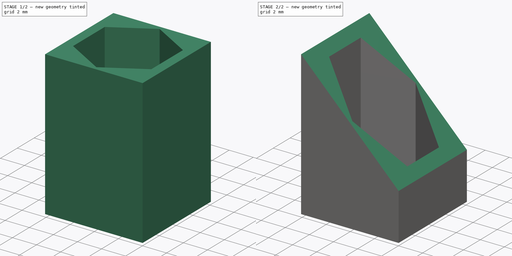
[diagram: build sequence overview — one tinted view per stage of 2, left to right]
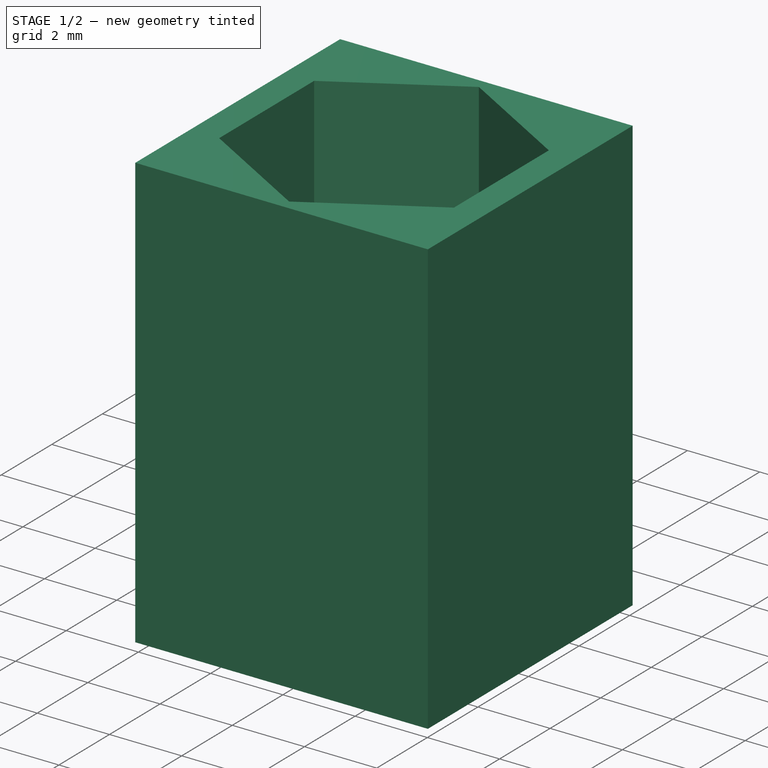
[diagram: stage 1 of 2 — iso view after this stage's code; geometry added in this stage tinted green]
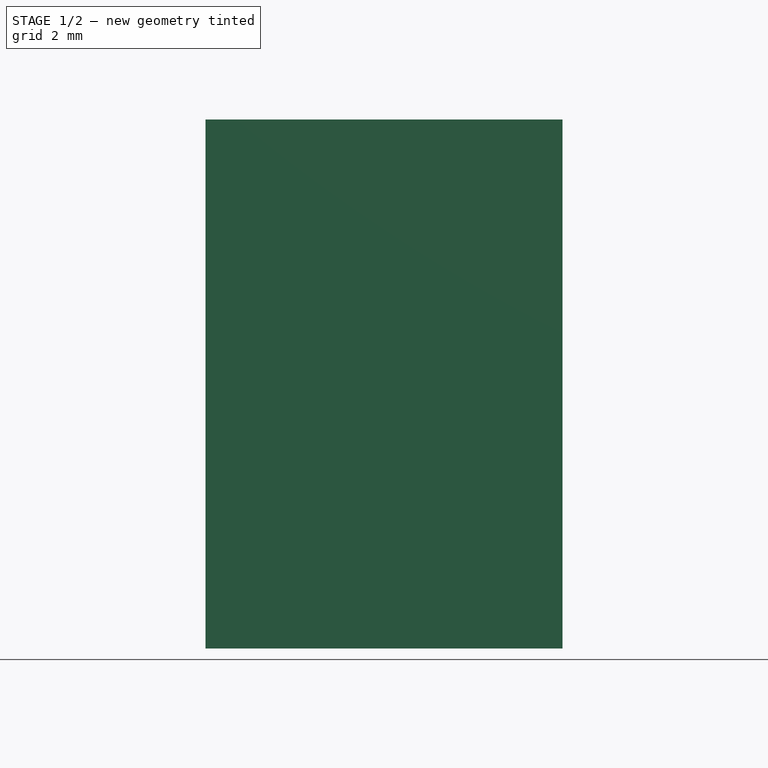
[diagram: stage 1 of 2 — front view after this stage's code; geometry added in this stage tinted green]
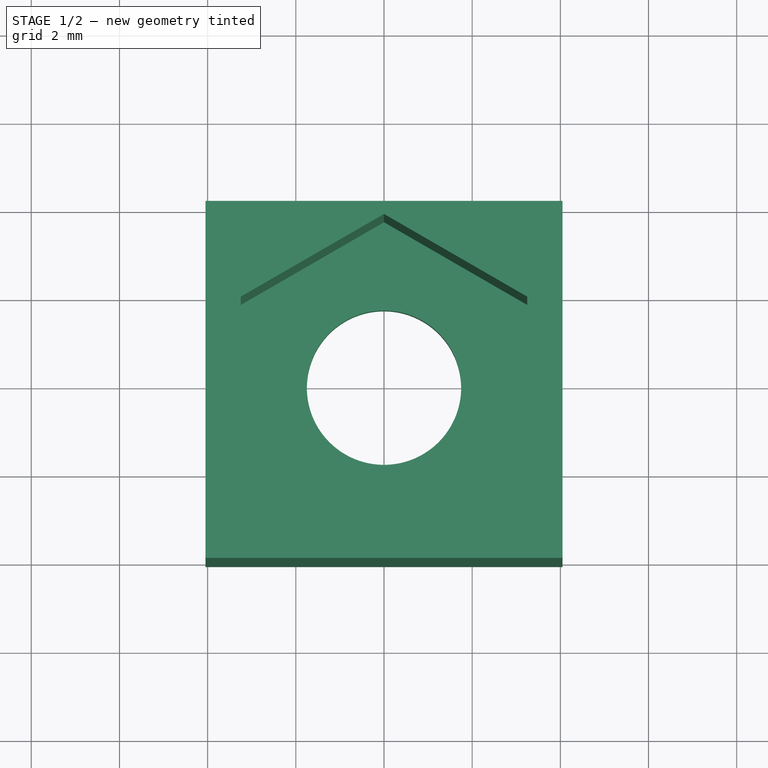
[diagram: stage 1 of 2 — top view after this stage's code; geometry added in this stage tinted green]
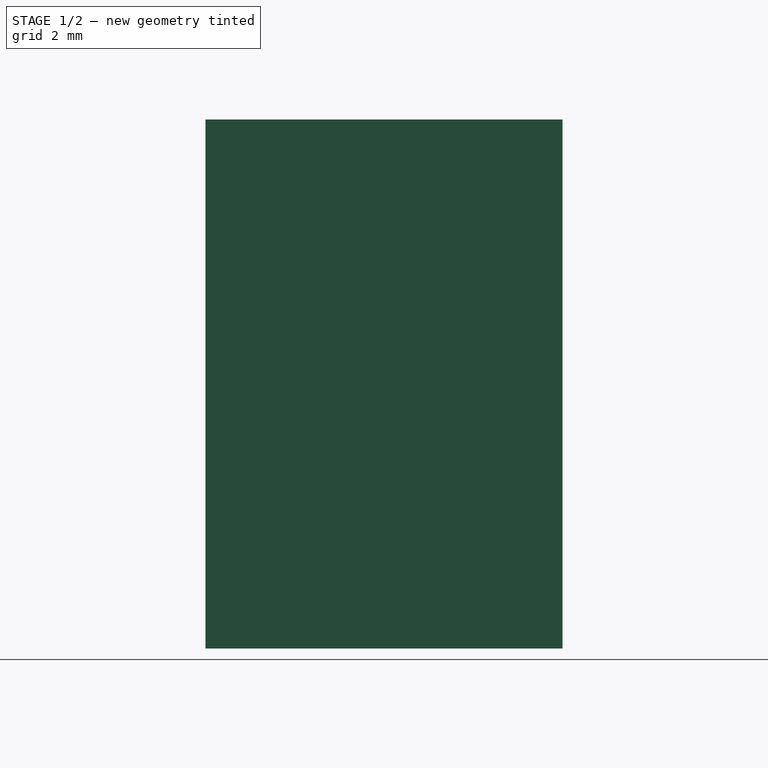
[diagram: stage 1 of 2 — right view after this stage's code; geometry added in this stage tinted green]
FCSTD DOCUMENT  (FreeCAD 0.20R29177 (Git))
Label: Nut Anchor
License: All rights reserved
LicenseURL: https://en.wikipedia.org/wiki/All_rights_reserved
objects: PartDesign::CoordinateSystem×5, Sketcher::SketchObject×3, PartDesign::Pocket×2, App::FeaturePython×1, PartDesign::Pad×1, PartDesign::Body×1
note: 15 computed .brp shape members not serialized (recipe doc carries the construction recipe); baked Part::Feature solids carry a one-line shape summary decoded from their .brp

FEATURE [Sketcher::SketchObject] Sketch
  FullyConstrained = true
  MapMode = 5
  Support = -> [XY_Plane]
  expr: Constraints[10] = Variables.hole_diameter
  expr: Constraints[12] = Variables.width
  sketch-geometry (5):
    g0: LineSegment StartX=-4.05 StartY=4.05 StartZ=0 EndX=4.05 EndY=4.05 EndZ=0
    g1: LineSegment StartX=4.05 StartY=4.05 StartZ=0 EndX=4.05 EndY=-4.05 EndZ=0
    g2: LineSegment StartX=4.05 StartY=-4.05 StartZ=0 EndX=-4.05 EndY=-4.05 EndZ=0
    g3: LineSegment StartX=-4.05 StartY=-4.05 StartZ=0 EndX=-4.05 EndY=4.05 EndZ=0
    g4: Circle CenterX=0 CenterY=0 CenterZ=0 NormalX=0 NormalY=0 NormalZ=1 AngleXU=0 Radius=1.75
  constraints (13):
    c: Coincident(g0,g1)
    c: Coincident(g1,g2)
    c: Coincident(g2,g3)
    c: Coincident(g3,g0)
    c: Horizontal(g0)
    c: Horizontal(g2)
    c: Vertical(g1)
    c: Vertical(g3)
    c: Symmetric(g1,g0,g-1)
    c: Coincident(g4,g-1)
    c: Diameter(g4) = 3.5
    c: Equal(g0,g1)
    c: DistanceX(g2,g2) = 8.1
FEATURE [App::FeaturePython] Variables  # WARN: FeaturePython — macro-defined, semantics opaque (R4)
  Type = App::PropertyContainer
  bold_width = 5.5
  height = 12
  hole_diameter = 3.5
  width = 8.1
  expr: width = bold_width + 0.5 * 2 + 0.8 * 2
FEATURE [PartDesign::Pad] Pad  label="Cylinder"
  Direction = (0,0,1)
  Length = 12
  Length2 = 10
  Profile = -> Sketch
  ReferenceAxis = -> Sketch [N_Axis]
  Refine = true
  Type = 0
  expr: Length = Variables.height
FEATURE [Sketcher::SketchObject] Sketch001
  AttachmentOffset = pos=(0,0,1.2) rot=(0,0,1;0rad)
  FullyConstrained = true
  MapMode = 5
  Placement = pos=(0,0,1.2) rot=(0,0,1;0rad)
  Support = -> [XY_Plane]
  expr: Constraints[19] = Variables.bold_width + 1
  sketch-geometry (7):
    g0: LineSegment StartX=0 StartY=3.75278 StartZ=0 EndX=-3.25 EndY=1.87639 EndZ=0
    g1: LineSegment StartX=-3.25 StartY=1.87639 StartZ=0 EndX=-3.25 EndY=-1.87639 EndZ=0
    g2: LineSegment StartX=-3.25 StartY=-1.87639 StartZ=0 EndX=4e-16 EndY=-3.75278 EndZ=0
    g3: LineSegment StartX=4e-16 StartY=-3.75278 StartZ=0 EndX=3.25 EndY=-1.87639 EndZ=0
    g4: LineSegment StartX=3.25 StartY=-1.87639 StartZ=0 EndX=3.25 EndY=1.87639 EndZ=0
    g5: LineSegment StartX=3.25 StartY=1.87639 StartZ=0 EndX=0 EndY=3.75278 EndZ=0
    g6: Circle CenterX=0 CenterY=0 CenterZ=0 NormalX=0 NormalY=0 NormalZ=1 AngleXU=0 Radius=3.75278
  constraints (16):
    c: Coincident(g0,g1)
    c: Coincident(g1,g2)
    c: Coincident(g2,g3)
    c: Coincident(g3,g4)
    c: Coincident(g4,g5)
    c: Coincident(g5,g0)
    c: Equal(g0, g1-g5) x5
    c: PointOnObject(g0,g6)
    c: PointOnObject(g1,g6)
    c: PointOnObject(g2,g6)
    c: PointOnObject(g3,g6)
    c: PointOnObject(g4,g6)
    c: PointOnObject(g5,g6)
    c: Coincident(g6,g-1)
    c: PointOnObject(g5,g-2)
    c: DistanceX(g1,g3) = 6.5
FEATURE [PartDesign::Pocket] Pocket  label="Nut Fit"
  BaseFeature = -> Pad
  Direction = (0,0,-1)
  Length = 5
  Length2 = 5
  Profile = -> Sketch001
  ReferenceAxis = -> Sketch001 [N_Axis]
  Refine = true
  Reversed = true
  Type = 1
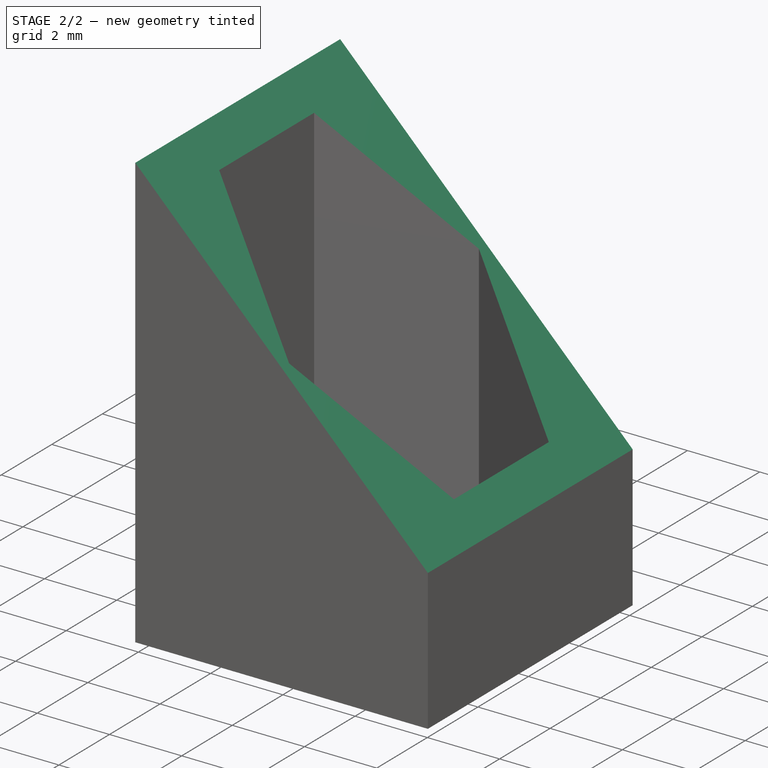
[diagram: stage 2 of 2 — iso view after this stage's code; geometry added in this stage tinted green]
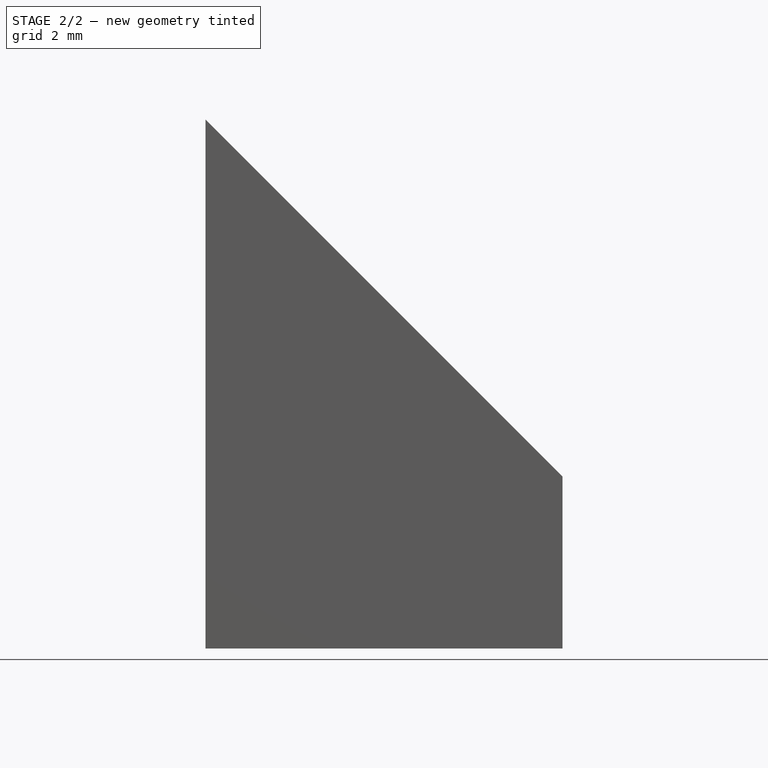
[diagram: stage 2 of 2 — front view after this stage's code; geometry added in this stage tinted green]
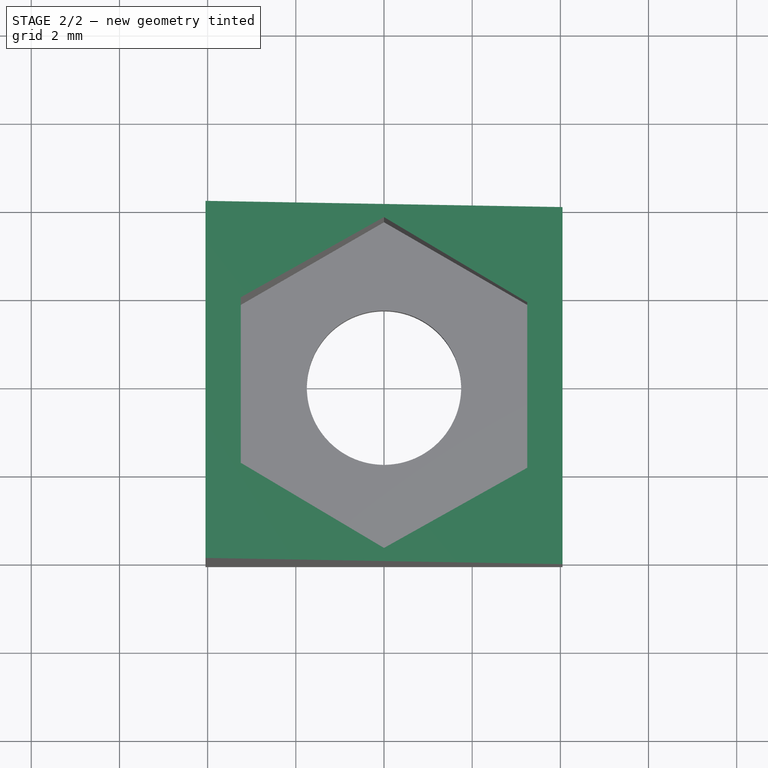
[diagram: stage 2 of 2 — top view after this stage's code; geometry added in this stage tinted green]
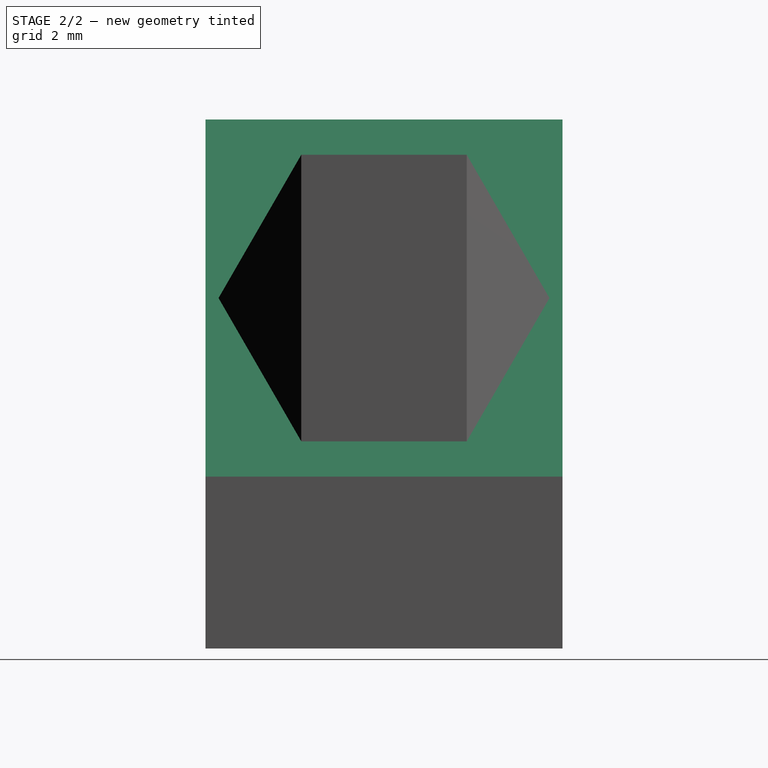
[diagram: stage 2 of 2 — right view after this stage's code; geometry added in this stage tinted green]
FEATURE [PartDesign::CoordinateSystem] LCS_0
  AttacherType = Attacher::AttachEngine3D
  MapMode = 2
  Support = -> [Pad]
FEATURE [PartDesign::CoordinateSystem] LCS_Top
  AttacherType = Attacher::AttachEngine3D
  AttachmentOffset = pos=(0,0,12) rot=(0,0,1;0rad)
  MapMode = 2
  Placement = pos=(0,0,12) rot=(0,0,1;0rad)
  Support = -> [Pad]
  expr: .AttachmentOffset.Base.z = Variables.height
FEATURE [PartDesign::CoordinateSystem] LCS_Bottom_Left
  AttacherType = Attacher::AttachEngine3D
  AttachmentOffset = pos=(-4.05,0,0) rot=(0,0,1;0rad)
  MapMode = 2
  Placement = pos=(-4.05,0,0) rot=(0,0,1;0rad)
  Support = -> [Pad]
  expr: .AttachmentOffset.Base.x = -Variables.width / 2
FEATURE [Sketcher::SketchObject] Sketch002
  ExternalGeometry = -> [Pocket]
  FullyConstrained = true
  MapMode = 5
  Placement = pos=(0,0,0) rot=(1,0,0;1.5708rad)
  Support = -> [XZ_Plane]
  sketch-geometry (3):
    g0: LineSegment StartX=4.05 StartY=12 StartZ=0 EndX=-4.05 EndY=12 EndZ=0
    g1: LineSegment StartX=4.05 StartY=12 StartZ=0 EndX=4.05 EndY=3.9 EndZ=0
    g2: LineSegment StartX=-4.05 StartY=12 StartZ=0 EndX=4.05 EndY=3.9 EndZ=0
  constraints (7):
    c: Coincident(g0,g-5)
    c: Coincident(g0,g-4)
    c: Coincident(g1,g0)
    c: Vertical(g1)
    c: Coincident(g2,g0)
    c: Coincident(g2,g1)
    c: Equal(g1,g0)
FEATURE [PartDesign::Pocket] Pocket001  label="Diag Cut"
  BaseFeature = -> Pocket
  Direction = (0,1,2e-16)
  Length = 5
  Length2 = 5
  Midplane = true
  Profile = -> Sketch002
  ReferenceAxis = -> Sketch002 [N_Axis]
  Refine = true
  Type = 1
FEATURE [PartDesign::CoordinateSystem] LCS_Bottom_Front_Left
  AttacherType = Attacher::AttachEngine3D
  AttachmentOffset = pos=(-4.05,-4.05,0) rot=(0,0,1;0rad)
  MapMode = 2
  Placement = pos=(-4.05,-4.05,0) rot=(0,0,1;0rad)
  Support = -> [Pad]
  expr: .AttachmentOffset.Base.x = -Variables.width / 2
  expr: .AttachmentOffset.Base.y = -Variables.width / 2
FEATURE [PartDesign::CoordinateSystem] LCS_Bottom_Rear_Left
  AttacherType = Attacher::AttachEngine3D
  AttachmentOffset = pos=(-4.05,4.05,0) rot=(0,0,1;0rad)
  MapMode = 2
  Placement = pos=(-4.05,4.05,0) rot=(0,0,1;0rad)
  Support = -> [Pad]
  expr: .AttachmentOffset.Base.x = -Variables.width / 2
  expr: .AttachmentOffset.Base.y = Variables.width / 2
FEATURE [PartDesign::Body] Body
  Group = -> [Sketch,Pad,Sketch001,Pocket,Pocket001,LCS_0,LCS_Top,LCS_Bottom_Left,Sketch002,LCS_Bottom_Front_Left,LCS_Bottom_Rear_Left]
  Origin = -> Origin
  Tip = -> Pocket001
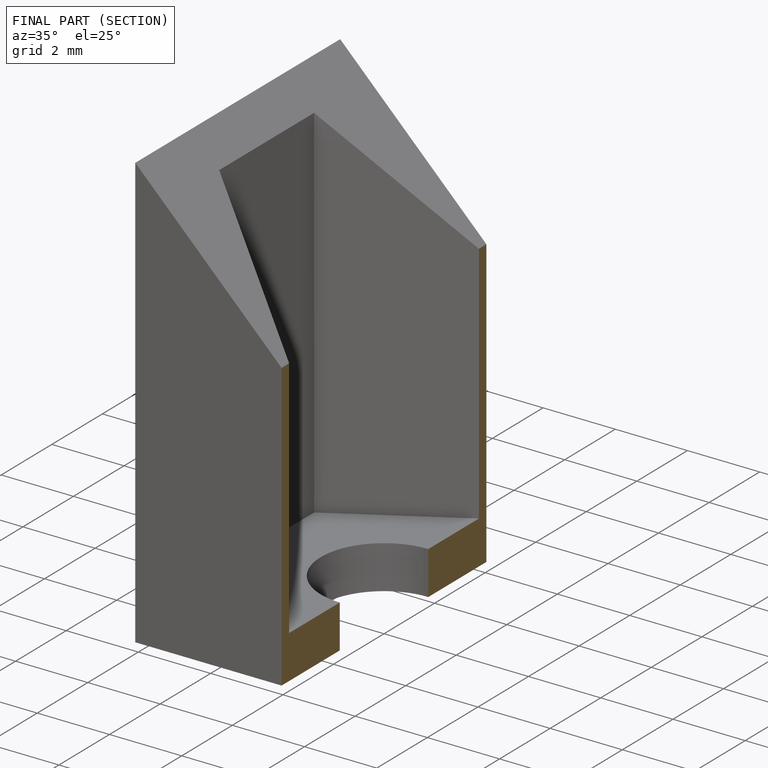
[diagram: finished part — half-section view (interior)]
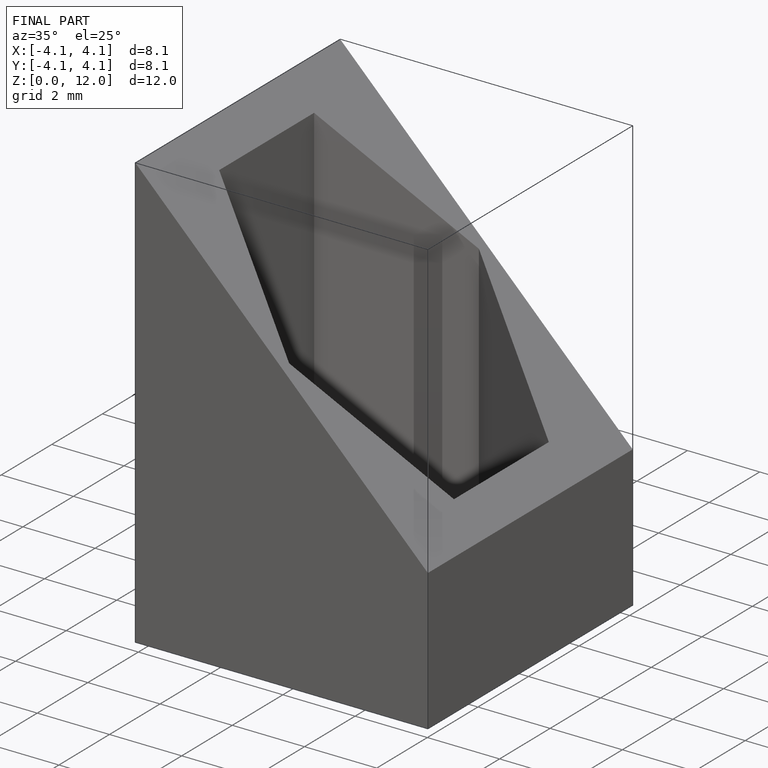
[diagram: finished part — iso view with bounding-box wireframe]
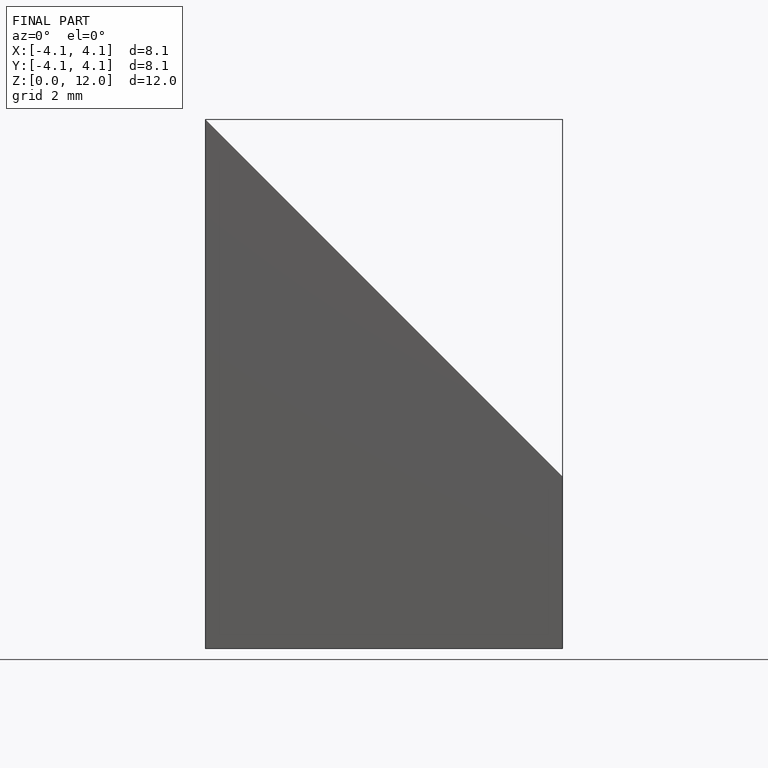
[diagram: finished part — front view with bounding-box wireframe]
